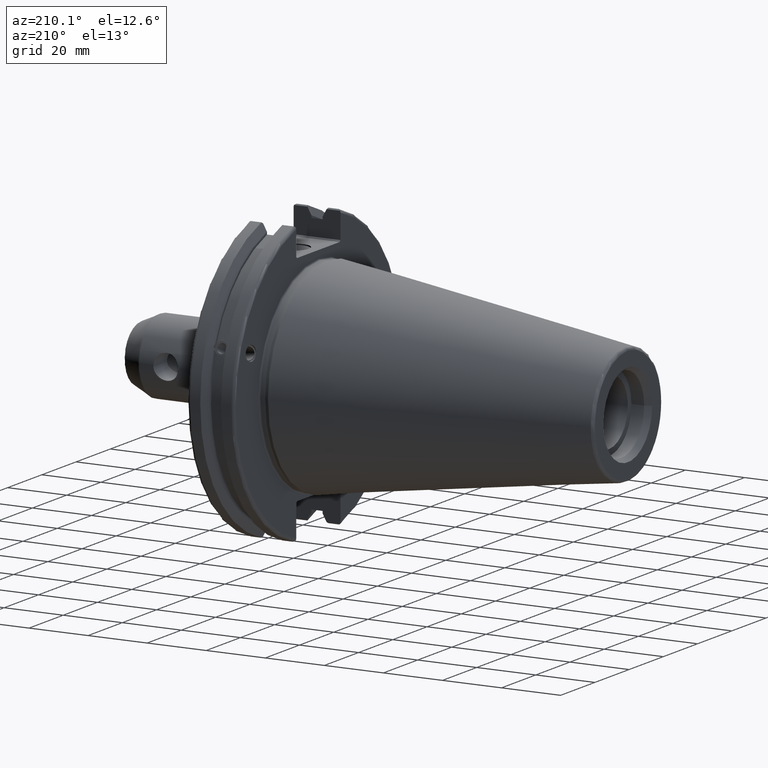
[diagram: clean part render]
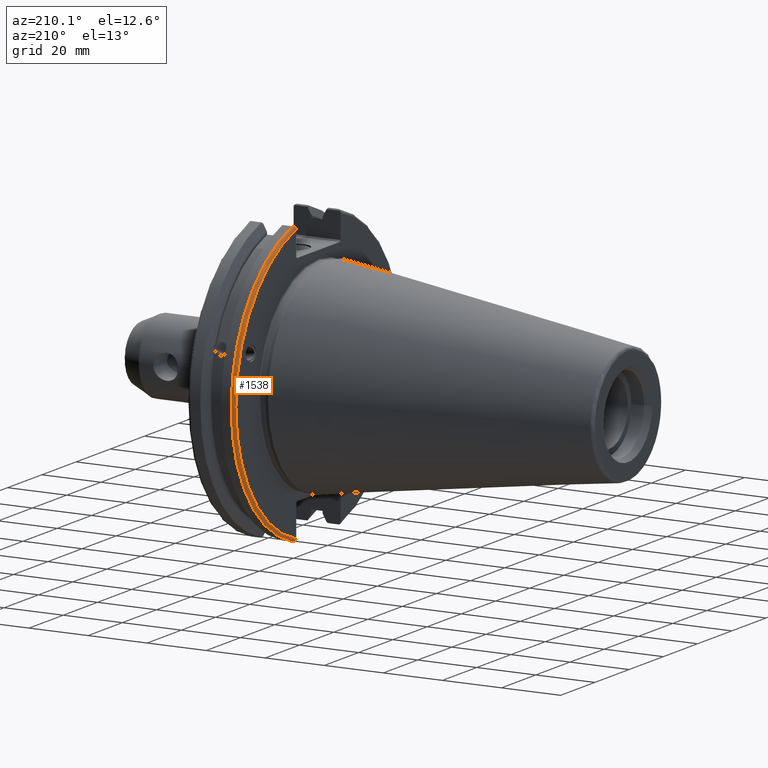
[diagram: same view with one face highlighted and labeled with its STEP entity id]
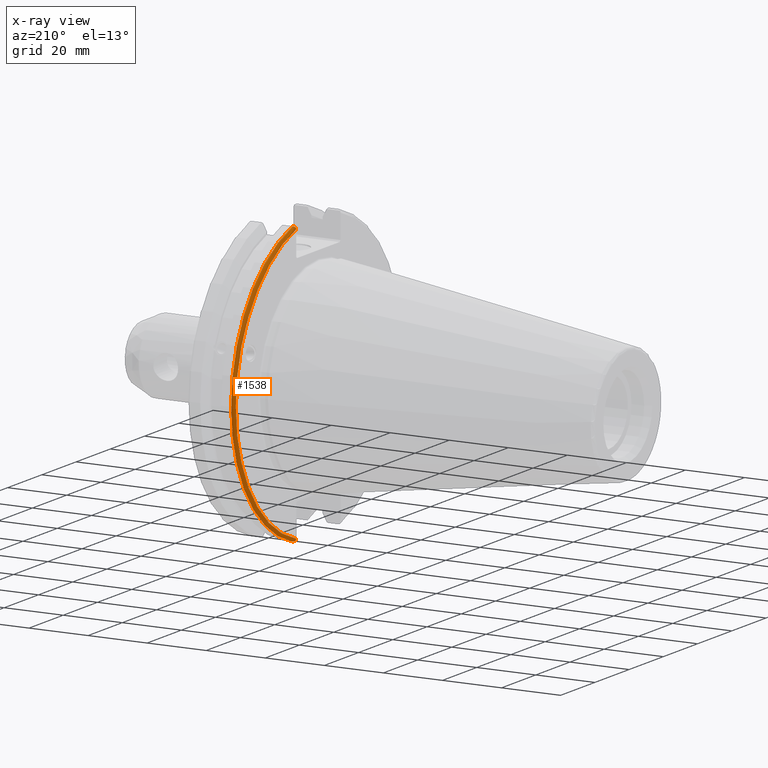
[diagram: x-ray of the same camera — body ghosted, the highlighted face saturated]
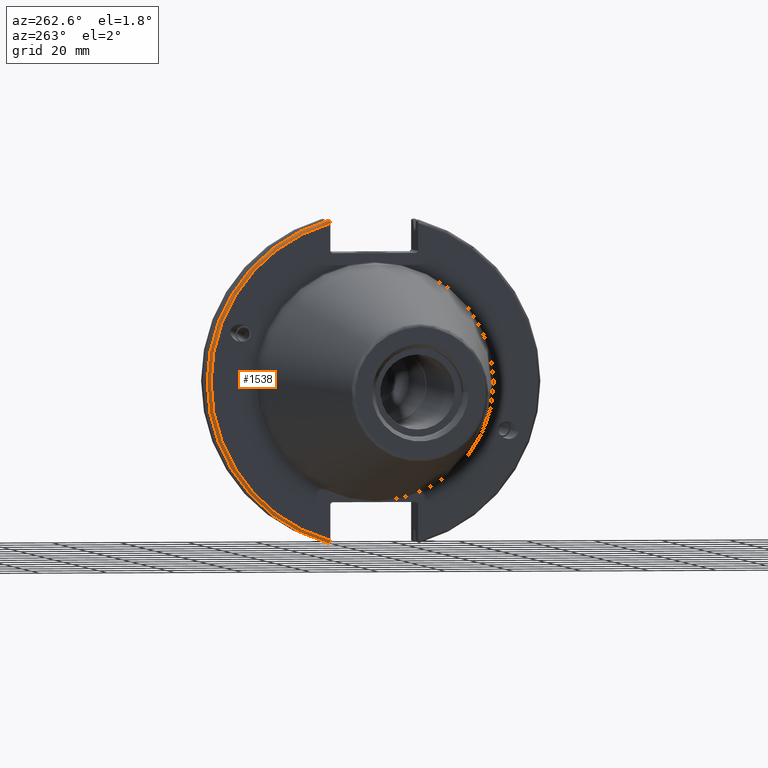
[diagram: same view with one face highlighted and labeled with its STEP entity id]
A machine part, auxiliary view. The second image highlights one B-rep face of the part: STEP entity #1538.
The next image is the same camera in x-ray: the body ghosted, the highlighted face saturated — about 0% of this face is hidden behind the body in this view.
A second angle (auxiliary view) of the same face is appended — the face is thin or edge-on in the first view.
In plain terms, the highlighted toroidal blend (fillet) surface has major radius 48.2125 mm and minor (blend) radius 1 mm.
Its self-contained STEP definition (entity closure, byte-faithful):
#76=TOROIDAL_SURFACE('',#1709,48.2125,1.);
#152=CIRCLE('',#1692,48.2125);
#158=CIRCLE('',#1710,49.2125);
#243=FACE_OUTER_BOUND('',#346,.T.);
#346=EDGE_LOOP('',(#1310,#1311,#1312,#1313,#1314,#1315));
#598=B_SPLINE_CURVE_WITH_KNOTS('',3,(#2971,#2972,#2973,#2974,#2975,#2976),
 .UNSPECIFIED.,.F.,.F.,(4,2,4),(0.0976892167532858,0.112000071948292,0.150881870548587),
 .UNSPECIFIED.);
#607=B_SPLINE_CURVE_WITH_KNOTS('',3,(#3095,#3096,#3097,#3098,#3099,#3100,
#3101,#3102),.UNSPECIFIED.,.F.,.F.,(4,2,2,4),(-0.104075769062722,-0.0730268503455479,
-0.0343639873656265,0.),.UNSPECIFIED.);
#608=B_SPLINE_CURVE_WITH_KNOTS('',3,(#3105,#3106,#3107,#3108,#3109,#3110,
#3111,#3112),.UNSPECIFIED.,.F.,.F.,(4,2,2,4),(0.,0.0343639873656266,0.0730268503455482,
0.104075769062722),.UNSPECIFIED.);
#609=B_SPLINE_CURVE_WITH_KNOTS('',3,(#3113,#3114,#3115,#3116,#3117,#3118),
 .UNSPECIFIED.,.F.,.F.,(4,2,4),(0.452859340315923,0.491741138916218,0.506051994111224),
 .UNSPECIFIED.);
#718=VERTEX_POINT('',#2914);
#719=VERTEX_POINT('',#2916);
#729=VERTEX_POINT('',#2970);
#749=VERTEX_POINT('',#3093);
#750=VERTEX_POINT('',#3094);
#751=VERTEX_POINT('',#3103);
#906=EDGE_CURVE('',#719,#718,#152,.T.);
#922=EDGE_CURVE('',#729,#719,#598,.T.);
#954=EDGE_CURVE('',#749,#750,#607,.T.);
#955=EDGE_CURVE('',#750,#751,#158,.T.);
#956=EDGE_CURVE('',#751,#729,#608,.T.);
#957=EDGE_CURVE('',#718,#749,#609,.T.);
#1310=ORIENTED_EDGE('',*,*,#954,.T.);
#1311=ORIENTED_EDGE('',*,*,#955,.T.);
#1312=ORIENTED_EDGE('',*,*,#956,.T.);
#1313=ORIENTED_EDGE('',*,*,#922,.T.);
#1314=ORIENTED_EDGE('',*,*,#906,.T.);
#1315=ORIENTED_EDGE('',*,*,#957,.T.);
#1538=ADVANCED_FACE('',(#243),#76,.T.);
#1692=AXIS2_PLACEMENT_3D('',#2917,#2009,#2010);
#1709=AXIS2_PLACEMENT_3D('',#3092,#2067,#2068);
#1710=AXIS2_PLACEMENT_3D('',#3104,#2069,#2070);
#2009=DIRECTION('center_axis',(1.,0.,0.));
#2010=DIRECTION('ref_axis',(0.,1.,-6.12323399573677E-17));
#2067=DIRECTION('center_axis',(1.,0.,0.));
#2068=DIRECTION('ref_axis',(0.,0.,-1.));
#2069=DIRECTION('center_axis',(-1.,0.,0.));
#2070=DIRECTION('ref_axis',(0.,1.,-6.12323399573677E-17));
#2914=CARTESIAN_POINT('',(3.175,12.95,46.4407434937254));
#2916=CARTESIAN_POINT('',(3.175,12.95,-46.4407434937254));
#2917=CARTESIAN_POINT('Origin',(3.175,0.,0.));
#2970=CARTESIAN_POINT('',(3.31949794294344,12.95,-46.9780755322918));
#2971=CARTESIAN_POINT('Ctrl Pts',(3.31949794294344,12.95,-46.9780755322918));
#2972=CARTESIAN_POINT('Ctrl Pts',(3.29341556483839,12.95,-46.9333752207329));
#2973=CARTESIAN_POINT('Ctrl Pts',(3.27115672912336,12.95,-46.887363294568));
#2974=CARTESIAN_POINT('Ctrl Pts',(3.20453530071253,12.95,-46.7230464903732));
#2975=CARTESIAN_POINT('Ctrl Pts',(3.175,12.95,-46.5703494890597));
#2976=CARTESIAN_POINT('Ctrl Pts',(3.175,12.95,-46.4407434937254));
#3092=CARTESIAN_POINT('Origin',(4.175,0.,0.));
#3093=CARTESIAN_POINT('',(3.31949794294344,12.95,46.9780755322918));
#3094=CARTESIAN_POINT('',(4.175,13.4317035994433,47.3440544806494));
#3095=CARTESIAN_POINT('Ctrl Pts',(3.31949794294344,12.95,46.9780755322918));
#3096=CARTESIAN_POINT('Ctrl Pts',(3.36785032278754,13.0300321736484,47.0388807469102));
#3097=CARTESIAN_POINT('Ctrl Pts',(3.43235971798504,13.1083611826073,47.0983919657547));
#3098=CARTESIAN_POINT('Ctrl Pts',(3.58507512107923,13.2478194810695,47.2043467509586));
#3099=CARTESIAN_POINT('Ctrl Pts',(3.70638116490965,13.3242014686233,47.2623787015413));
#3100=CARTESIAN_POINT('Ctrl Pts',(3.92661103245834,13.4067722493645,47.3251126473446));
#3101=CARTESIAN_POINT('Ctrl Pts',(4.06045337544791,13.4317035994433,47.3440544806494));
#3102=CARTESIAN_POINT('Ctrl Pts',(4.175,13.4317035994433,47.3440544806494));
#3103=CARTESIAN_POINT('',(4.175,13.4317035994433,-47.3440544806494));
#3104=CARTESIAN_POINT('Origin',(4.175,0.,0.));
#3105=CARTESIAN_POINT('Ctrl Pts',(4.175,13.4317035994433,-47.3440544806494));
#3106=CARTESIAN_POINT('Ctrl Pts',(4.06045337544791,13.4317035994433,-47.3440544806494));
#3107=CARTESIAN_POINT('Ctrl Pts',(3.92661103245834,13.4067722493645,-47.3251126473446));
#3108=CARTESIAN_POINT('Ctrl Pts',(3.70638116490964,13.3242014686232,-47.2623787015413));
#3109=CARTESIAN_POINT('Ctrl Pts',(3.58507512107923,13.2478194810695,-47.2043467509586));
#3110=CARTESIAN_POINT('Ctrl Pts',(3.43235971798504,13.1083611826073,-47.0983919657547));
#3111=CARTESIAN_POINT('Ctrl Pts',(3.36785032278754,13.0300321736484,-47.0388807469102));
#3112=CARTESIAN_POINT('Ctrl Pts',(3.31949794294344,12.95,-46.9780755322918));
#3113=CARTESIAN_POINT('Ctrl Pts',(3.175,12.95,46.4407434937254));
#3114=CARTESIAN_POINT('Ctrl Pts',(3.175,12.95,46.5703494890597));
#3115=CARTESIAN_POINT('Ctrl Pts',(3.20453530071253,12.95,46.7230464903732));
#3116=CARTESIAN_POINT('Ctrl Pts',(3.27115672912336,12.95,46.887363294568));
#3117=CARTESIAN_POINT('Ctrl Pts',(3.29341556483839,12.95,46.9333752207329));
#3118=CARTESIAN_POINT('Ctrl Pts',(3.31949794294344,12.95,46.9780755322918));